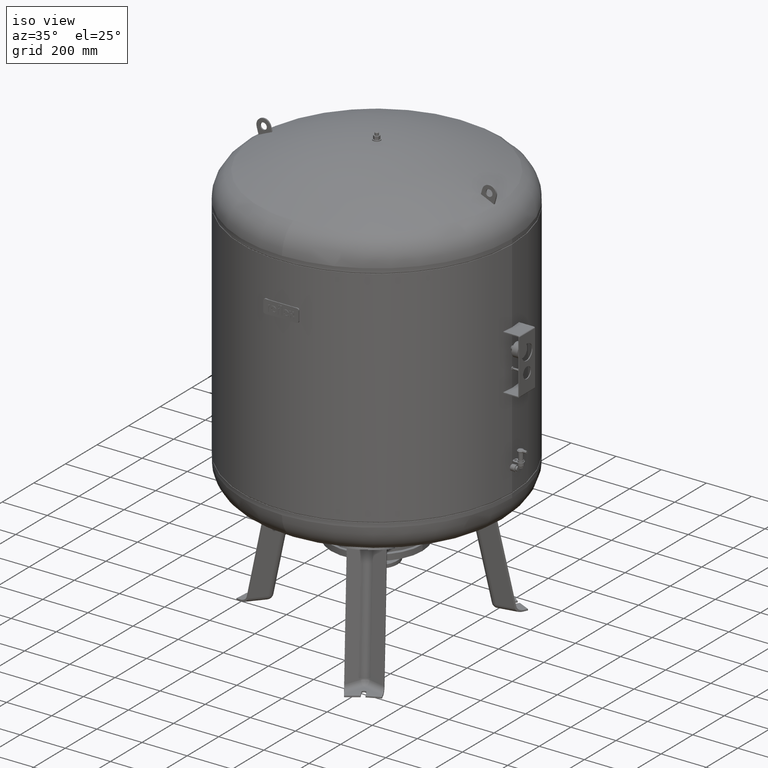
[diagram: clean part render]
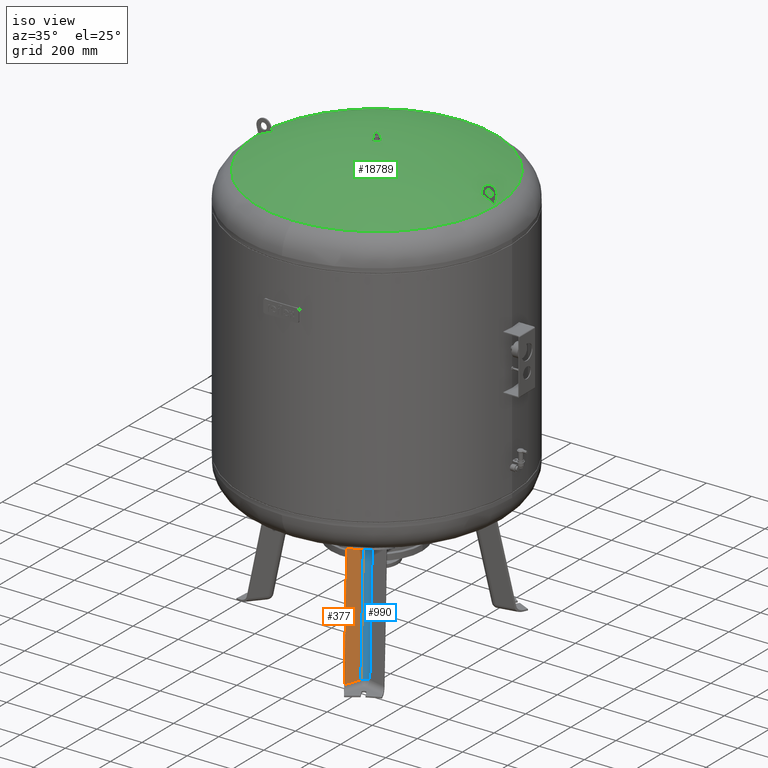
[diagram: same view with three faces highlighted in distinct colors, each labeled with its STEP entity id]
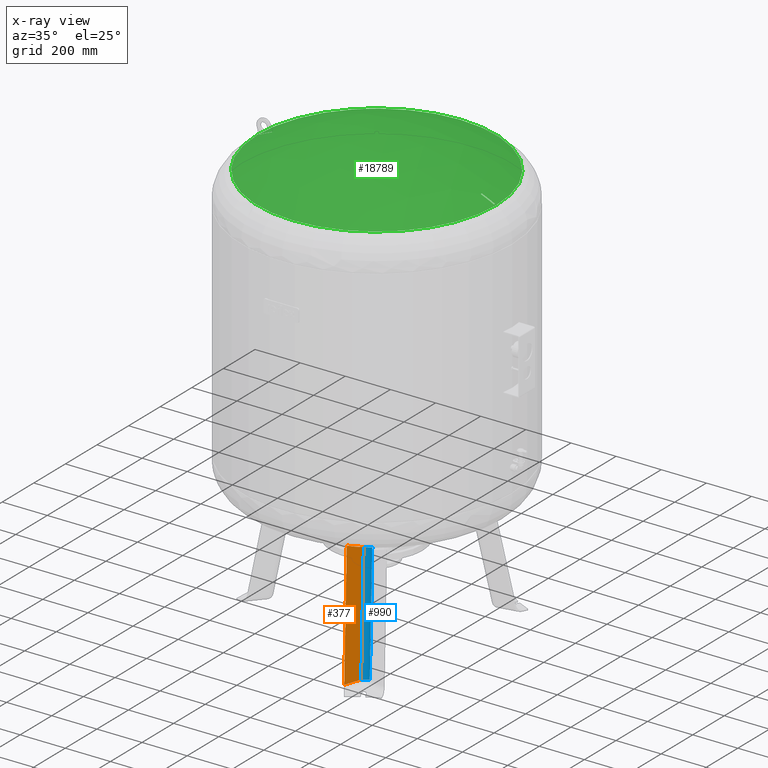
[diagram: x-ray of the same camera — body ghosted, the three highlighted faces saturated]
A machine part, iso view with three faces highlighted in distinct colors.
The next image is the same camera in x-ray (body ghosted, the three faces saturated) — at least one of them is partly hidden behind the body in this view.
Their STEP definitions:

[orange] entity #377 — the highlighted planar face has unit normal (0.9325, -0.3243, 0.1588).
#171=CARTESIAN_POINT('',(224.087779953756690,-420.404321888330510,27.029948423057292));
#172=VERTEX_POINT('',#171);
#244=CARTESIAN_POINT('',(172.742614659006790,-331.471886874801500,510.149969666713160));
#245=VERTEX_POINT('',#244);
#326=CARTESIAN_POINT('',(145.613083205598370,-397.884990698561070,533.843746499036000));
#327=VERTEX_POINT('',#326);
#335=CARTESIAN_POINT('',(172.742614659006790,-331.471886874801500,510.149969666713160));
#336=CARTESIAN_POINT('',(171.938159054882850,-333.488976274067450,510.754973838816850));
#337=CARTESIAN_POINT('',(171.131433109522620,-335.506731719872560,511.371950061965830));
#338=CARTESIAN_POINT('',(167.593311024786910,-344.335298495005080,514.120476420435810));
#339=CARTESIAN_POINT('',(164.839591880331030,-351.152787533789710,516.369477981931820));
#340=CARTESIAN_POINT('',(156.647038447854500,-371.293373231930900,523.350498082422520));
#341=CARTESIAN_POINT('',(151.152545046034160,-384.619296430347730,528.403592446426050));
#342=CARTESIAN_POINT('',(145.613083205598370,-397.884990698561070,533.843746499036000));
#343=B_SPLINE_CURVE_WITH_KNOTS('',3,(#335,#336,#337,#338,#339,#340,#341,#342),.UNSPECIFIED.,.F.,.U.,(4,2,2,4),(5.937335443723129,6.588195328792665,8.784260438390220,13.073486937020286),.UNSPECIFIED.);
#344=EDGE_CURVE('',#245,#327,#343,.T.);
#349=CARTESIAN_POINT('',(238.377993293609310,-412.882795790844740,-41.527282742766886));
#350=DIRECTION('',(0.932535537409927,-0.324282864533177,0.158802063077708));
#351=DIRECTION('',(-0.103955845408880,0.180056805991956,0.978147600733806));
#352=AXIS2_PLACEMENT_3D('',#349,#350,#351);
#353=PLANE('',#352);
#354=CARTESIAN_POINT('',(199.476382368575970,-491.178961512120450,27.029948423057292));
#355=VERTEX_POINT('',#354);
#356=CARTESIAN_POINT('',(199.476382368575970,-491.178961512120450,27.029948423057292));
#357=DIRECTION('',(-0.103955845408880,0.180056805991956,0.978147600733805));
#358=VECTOR('',#357,518.136319810800960);
#359=LINE('',#356,#358);
#360=EDGE_CURVE('',#355,#327,#359,.T.);
#361=ORIENTED_EDGE('',*,*,#360,.F.);
#362=CARTESIAN_POINT('',(224.087779953756690,-420.404321888330510,27.029948423057292));
#363=DIRECTION('',(-0.328450760190053,-0.944521094592692,0.0));
#364=VECTOR('',#363,74.931772333057609);
#365=LINE('',#362,#364);
#366=EDGE_CURVE('',#172,#355,#365,.T.);
#367=ORIENTED_EDGE('',*,*,#366,.F.);
#368=CARTESIAN_POINT('',(172.742614659006790,-331.471886874801500,510.149969666713160));
#369=DIRECTION('',(0.103955845408880,-0.180056805991956,-0.978147600733806));
#370=VECTOR('',#369,493.913209909444730);
#371=LINE('',#368,#370);
#372=EDGE_CURVE('',#245,#172,#371,.T.);
#373=ORIENTED_EDGE('',*,*,#372,.F.);
#374=ORIENTED_EDGE('',*,*,#344,.T.);
#375=EDGE_LOOP('',(#361,#367,#373,#374));
#376=FACE_OUTER_BOUND('',#375,.T.);
#377=ADVANCED_FACE('',(#376),#353,.T.);

[blue] entity #990 — the highlighted cylindrical surface (edge-blend (fillet) strip) has radius 25 mm, axis along (-0.104, 0.1801, 0.9781).
#160=CARTESIAN_POINT('',(235.174323379832230,-407.333876729503060,25.802207729556002));
#161=VERTEX_POINT('',#160);
#171=CARTESIAN_POINT('',(224.087779953756690,-420.404321888330510,27.029948423057292));
#172=VERTEX_POINT('',#171);
#173=CARTESIAN_POINT('',(247.401168389004820,-428.511393501659880,30.999999999999996));
#174=DIRECTION('',(-0.103955845408880,0.180056805991956,0.978147600733806));
#175=DIRECTION('',(-0.489073800366903,0.847100670886274,-0.207911690817760));
#176=AXIS2_PLACEMENT_3D('',#173,#174,#175);
#177=CIRCLE('',#176,25.0);
#178=EDGE_CURVE('',#161,#172,#177,.T.);
#242=CARTESIAN_POINT('',(200.691767344436100,-315.335436048247000,510.149969666713160));
#243=VERTEX_POINT('',#242);
#244=CARTESIAN_POINT('',(172.742614659006790,-331.471886874801500,510.149969666713160));
#245=VERTEX_POINT('',#244);
#246=CARTESIAN_POINT('',(200.691767344436100,-315.335436048247000,510.149969666713160));
#247=CARTESIAN_POINT('',(198.775450494222180,-315.057347776605070,509.610492067767100));
#248=CARTESIAN_POINT('',(196.812028509003140,-315.003704261472080,509.142768173629350));
#249=CARTESIAN_POINT('',(192.097588450537240,-315.424372333148940,508.230481452949160));
#250=CARTESIAN_POINT('',(189.381028702845980,-316.111209373431510,507.875794926071140));
#251=CARTESIAN_POINT('',(183.888479743983680,-318.467065678776980,507.547821983487950));
#252=CARTESIAN_POINT('',(181.213447787471640,-320.228065699203970,507.635749648318040));
#253=CARTESIAN_POINT('',(176.681599389777260,-324.531225758709520,508.311742070800450));
#254=CARTESIAN_POINT('',(174.854033068806640,-327.010857001148170,508.880567433415820));
#255=CARTESIAN_POINT('',(173.239628059324670,-330.292798135430530,509.801786873107350));
#256=CARTESIAN_POINT('',(172.979052322870900,-330.879043835455830,509.972152802305740));
#257=CARTESIAN_POINT('',(172.742614659006790,-331.471886874801500,510.149969666713160));
#258=B_SPLINE_CURVE_WITH_KNOTS('',3,(#246,#247,#248,#249,#250,#251,#252,#253,#254,#255,#256,#257),.UNSPECIFIED.,.F.,.U.,(4,2,2,2,2,4),(6.178732562930628,6.782666790960307,7.624398032083759,8.577958119307457,9.509799036765610,9.709090216410045),.UNSPECIFIED.);
#259=EDGE_CURVE('',#243,#245,#258,.T.);
#368=CARTESIAN_POINT('',(172.742614659006790,-331.471886874801500,510.149969666713160));
#369=DIRECTION('',(0.103955845408880,-0.180056805991956,-0.978147600733806));
#370=VECTOR('',#369,493.913209909444730);
#371=LINE('',#368,#370);
#372=EDGE_CURVE('',#245,#172,#371,.T.);
#539=CARTESIAN_POINT('',(252.036932639185950,-404.267871061775960,27.029948423057284));
#540=VERTEX_POINT('',#539);
#541=CARTESIAN_POINT('',(252.036932639185950,-404.267871061775960,27.029948423057284));
#542=DIRECTION('',(-0.103955845408880,0.180056805991956,0.978147600733806));
#543=VECTOR('',#542,493.913209909444730);
#544=LINE('',#541,#543);
#545=EDGE_CURVE('',#540,#243,#544,.T.);
#813=CARTESIAN_POINT('',(247.401168389004820,-428.511393501659880,30.999999999999996));
#814=DIRECTION('',(-0.103955845408880,0.180056805991956,0.978147600733806));
#815=DIRECTION('',(-0.489073800366903,0.847100670886274,-0.207911690817760));
#816=AXIS2_PLACEMENT_3D('',#813,#814,#815);
#817=CIRCLE('',#816,25.0);
#818=EDGE_CURVE('',#540,#161,#817,.T.);
#978=CARTESIAN_POINT('',(255.066047946649410,-441.787354329396410,-41.120846304840903));
#979=DIRECTION('',(-0.103955845408880,0.180056805991956,0.978147600733806));
#980=DIRECTION('',(-0.489073800366903,0.847100670886274,-0.207911690817760));
#981=AXIS2_PLACEMENT_3D('',#978,#979,#980);
#982=CYLINDRICAL_SURFACE('',#981,25.000000000000004);
#983=ORIENTED_EDGE('',*,*,#372,.T.);
#984=ORIENTED_EDGE('',*,*,#178,.F.);
#985=ORIENTED_EDGE('',*,*,#818,.F.);
#986=ORIENTED_EDGE('',*,*,#545,.T.);
#987=ORIENTED_EDGE('',*,*,#259,.T.);
#988=EDGE_LOOP('',(#983,#984,#985,#986,#987));
#989=FACE_OUTER_BOUND('',#988,.T.);
#990=ADVANCED_FACE('',(#989),#982,.F.);

[green] entity #18789 — the highlighted spherical surface has radius 1207 mm.
#18221=CARTESIAN_POINT('',(3.894773E-014,-528.621296296296240,1847.084570483805000));
#18222=VERTEX_POINT('',#18221);
#18238=CARTESIAN_POINT('',(1.036830E-013,528.621296296296240,1847.084570483805000));
#18239=VERTEX_POINT('',#18238);
#18247=CARTESIAN_POINT('',(528.621296296296240,-2.239550E-014,1847.084570483805000));
#18248=VERTEX_POINT('',#18247);
#18249=CARTESIAN_POINT('',(3.410787E-015,-2.239550E-014,1847.084570483805000));
#18250=DIRECTION('',(0.0,0.0,-1.0));
#18251=DIRECTION('',(1.0,0.0,0.0));
#18252=AXIS2_PLACEMENT_3D('',#18249,#18250,#18251);
#18253=CIRCLE('',#18252,528.621296296296240);
#18254=EDGE_CURVE('',#18239,#18248,#18253,.T.);
#18256=CARTESIAN_POINT('',(3.410787E-015,-2.239550E-014,1847.084570483805000));
#18257=DIRECTION('',(0.0,0.0,-1.0));
#18258=DIRECTION('',(1.0,0.0,0.0));
#18259=AXIS2_PLACEMENT_3D('',#18256,#18257,#18258);
#18260=CIRCLE('',#18259,528.621296296296240);
#18261=EDGE_CURVE('',#18248,#18222,#18260,.T.);
#18376=CARTESIAN_POINT('',(-463.451600218966230,-3.000000000000292,1876.474142479079300));
#18377=VERTEX_POINT('',#18376);
#18378=CARTESIAN_POINT('',(-521.618748390259610,-2.999999999999862,1850.464000933324300));
#18379=VERTEX_POINT('',#18378);
#18380=CARTESIAN_POINT('',(1.015543E-013,-3.000000000004973,762.0));
#18381=DIRECTION('',(0.0,-1.0,0.0));
#18382=DIRECTION('',(0.0,0.0,1.0));
#18383=AXIS2_PLACEMENT_3D('',#18380,#18381,#18382);
#18384=CIRCLE('',#18383,1206.996271742378000);
#18385=EDGE_CURVE('',#18377,#18379,#18384,.T.);
#18428=CARTESIAN_POINT('',(-463.451600218966290,2.999999999999727,1876.474142479079500));
#18429=VERTEX_POINT('',#18428);
#18430=CARTESIAN_POINT('',(-143.673995061822890,7.801844E-013,722.196972395375950));
#18431=DIRECTION('',(0.963701753162816,-6.720348E-015,0.266981143436978));
#18432=DIRECTION('',(-0.266981143436977,0.0,0.963701753162815));
#18433=AXIS2_PLACEMENT_3D('',#18430,#18431,#18432);
#18434=CIRCLE('',#18433,1197.757280143385700);
#18435=EDGE_CURVE('',#18429,#18377,#18434,.T.);
#18478=CARTESIAN_POINT('',(-521.618748390259730,3.000000000000095,1850.464000933324100));
#18479=VERTEX_POINT('',#18478);
#18480=CARTESIAN_POINT('',(-204.387205511080400,1.203566E-012,705.377160358846370));
#18481=DIRECTION('',(-0.963701753162815,6.720348E-015,-0.266981143436977));
#18482=DIRECTION('',(0.266981143436977,0.0,-0.963701753162815));
#18483=AXIS2_PLACEMENT_3D('',#18480,#18481,#18482);
#18484=CIRCLE('',#18483,1188.220823018324600);
#18485=EDGE_CURVE('',#18379,#18479,#18484,.T.);
#18510=CARTESIAN_POINT('',(1.458865E-013,2.999999999995042,762.0));
#18511=DIRECTION('',(0.0,1.0,0.0));
#18512=DIRECTION('',(0.0,0.0,-1.0));
#18513=AXIS2_PLACEMENT_3D('',#18510,#18511,#18512);
#18514=CIRCLE('',#18513,1206.996271742378000);
#18515=EDGE_CURVE('',#18479,#18429,#18514,.T.);
#18550=CARTESIAN_POINT('',(463.451600218966350,2.999999999999727,1876.474142479079800));
#18551=VERTEX_POINT('',#18550);
#18552=CARTESIAN_POINT('',(521.618748390259730,3.000000000000095,1850.464000933324300));
#18553=VERTEX_POINT('',#18552);
#18554=CARTESIAN_POINT('',(1.015543E-013,2.999999999995042,762.0));
#18555=DIRECTION('',(0.0,1.0,0.0));
#18556=DIRECTION('',(0.0,0.0,-1.0));
#18557=AXIS2_PLACEMENT_3D('',#18554,#18555,#18556);
#18558=CIRCLE('',#18557,1206.996271742378000);
#18559=EDGE_CURVE('',#18551,#18553,#18558,.T.);
#18602=CARTESIAN_POINT('',(463.451600218966230,-3.000000000000292,1876.474142479079300));
#18603=VERTEX_POINT('',#18602);
#18604=CARTESIAN_POINT('',(143.673995061822890,7.801844E-013,722.196972395375950));
#18605=DIRECTION('',(-0.963701753162816,-6.720348E-015,0.266981143436978));
#18606=DIRECTION('',(-0.266981143436977,0.0,-0.963701753162815));
#18607=AXIS2_PLACEMENT_3D('',#18604,#18605,#18606);
#18608=CIRCLE('',#18607,1197.757280143385700);
#18609=EDGE_CURVE('',#18603,#18551,#18608,.T.);
#18673=CARTESIAN_POINT('',(521.618748390259610,-2.999999999999862,1850.464000933324300));
#18674=VERTEX_POINT('',#18673);
#18675=CARTESIAN_POINT('',(204.387205511080450,1.203566E-012,705.377160358846370));
#18676=DIRECTION('',(0.963701753162815,6.720348E-015,-0.266981143436977));
#18677=DIRECTION('',(0.266981143436977,0.0,0.963701753162815));
#18678=AXIS2_PLACEMENT_3D('',#18675,#18676,#18677);
#18679=CIRCLE('',#18678,1188.220823018324600);
#18680=EDGE_CURVE('',#18553,#18674,#18679,.T.);
#18744=CARTESIAN_POINT('',(1.458865E-013,-3.000000000004973,762.0));
#18745=DIRECTION('',(0.0,-1.0,0.0));
#18746=DIRECTION('',(0.0,0.0,1.0));
#18747=AXIS2_PLACEMENT_3D('',#18744,#18745,#18746);
#18748=CIRCLE('',#18747,1206.996271742378000);
#18749=EDGE_CURVE('',#18674,#18603,#18748,.T.);
#18761=CARTESIAN_POINT('',(1.237204E-013,-2.217223E-013,762.0));
#18762=DIRECTION('',(0.0,-1.0,0.0));
#18763=DIRECTION('',(-1.0,0.0,0.0));
#18764=AXIS2_PLACEMENT_3D('',#18761,#18762,#18763);
#18765=SPHERICAL_SURFACE('',#18764,1207.000000000000200);
#18766=ORIENTED_EDGE('',*,*,#18435,.T.);
#18767=ORIENTED_EDGE('',*,*,#18385,.T.);
#18768=ORIENTED_EDGE('',*,*,#18485,.T.);
#18769=ORIENTED_EDGE('',*,*,#18515,.T.);
#18770=EDGE_LOOP('',(#18766,#18767,#18768,#18769));
#18771=FACE_OUTER_BOUND('',#18770,.T.);
#18772=ORIENTED_EDGE('',*,*,#18609,.T.);
#18773=ORIENTED_EDGE('',*,*,#18559,.T.);
#18774=ORIENTED_EDGE('',*,*,#18680,.T.);
#18775=ORIENTED_EDGE('',*,*,#18749,.T.);
#18776=EDGE_LOOP('',(#18772,#18773,#18774,#18775));
#18777=FACE_BOUND('',#18776,.T.);
#18778=ORIENTED_EDGE('',*,*,#18261,.F.);
#18779=ORIENTED_EDGE('',*,*,#18254,.F.);
#18780=CARTESIAN_POINT('',(3.410787E-015,-2.239550E-014,1847.084570483805000));
#18781=DIRECTION('',(0.0,0.0,-1.0));
#18782=DIRECTION('',(1.0,0.0,0.0));
#18783=AXIS2_PLACEMENT_3D('',#18780,#18781,#18782);
#18784=CIRCLE('',#18783,528.621296296296240);
#18785=EDGE_CURVE('',#18222,#18239,#18784,.T.);
#18786=ORIENTED_EDGE('',*,*,#18785,.F.);
#18787=EDGE_LOOP('',(#18778,#18779,#18786));
#18788=FACE_BOUND('',#18787,.T.);
#18789=ADVANCED_FACE('',(#18771,#18777,#18788),#18765,.T.);